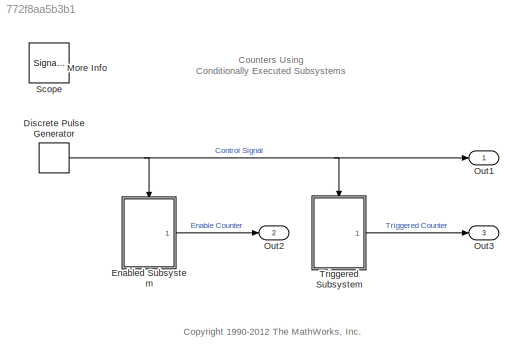
MODEL slx_772f8aa5b3b1
KIND model
BLOCK [DiscretePulseGenerator] Discrete Pulse Generator
  Period = 40
  Ports = [0, 1]
  PulseWidth = 20
  SampleTime = 0.01
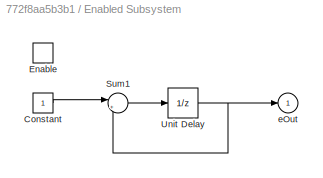
BLOCK [SubSystem] Enabled Subsystem
  FunctionWithSeparateData = off
  MaskHideContents = off
  MinAlgLoopOccurrences = off
  Opaque = off
  Ports = [0, 1, 1]
  PropExecContextOutsideSubsystem = off
  RTWSystemCode = Auto
  RequestExecContextInheritance = off
  TreatAsAtomicUnit = on
BLOCK [Constant] Enabled Subsystem/Constant
BLOCK [EnablePort] Enabled Subsystem/Enable
  Ports = []
  StatesWhenEnabling = reset
BLOCK [Sum] Enabled Subsystem/Sum1
  IconShape = round
  Inputs = |++
  Ports = [2, 1]
BLOCK [UnitDelay] Enabled Subsystem/Unit Delay
  SampleTime = .01
BLOCK [Outport] Enabled Subsystem/eOut
  IconDisplay = Port number
  InitialOutput = 0
BLOCK [SubSystem] More Info
  FunctionWithSeparateData = off
  MaskHideContents = off
  MinAlgLoopOccurrences = off
  Opaque = off
  OpenFcn = showdemo(bdroot(gcs))
  Ports = []
  PropExecContextOutsideSubsystem = off
  RTWSystemCode = Auto
  RequestExecContextInheritance = off
BLOCK [Outport] Out1
  IconDisplay = Port number
BLOCK [Outport] Out2
  IconDisplay = Port number
  Port = 2
BLOCK [Outport] Out3
  IconDisplay = Port number
  Port = 3
BLOCK [SignalViewerScope] Scope
  IOType = viewer
  MaxDataPoints = 7500
  NumInputPorts = 3
  Ports = []
  RefreshTime = 0.035000
  ShowDataMarkers = off
  ShowLegends = off
  TimeRange = 2.25
  YMax = 1.1~20~4.5
  YMin = -0.1~0~-0.5
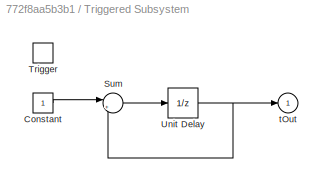
BLOCK [SubSystem] Triggered Subsystem
  FunctionWithSeparateData = off
  MaskHideContents = off
  MinAlgLoopOccurrences = off
  Opaque = off
  Ports = [0, 1, 0, 1]
  PropExecContextOutsideSubsystem = off
  RTWSystemCode = Auto
  RequestExecContextInheritance = off
  TreatAsAtomicUnit = on
BLOCK [Constant] Triggered Subsystem/Constant
BLOCK [Sum] Triggered Subsystem/Sum
  IconShape = round
  Inputs = |++
  Ports = [2, 1]
BLOCK [TriggerPort] Triggered Subsystem/Trigger
  Ports = []
BLOCK [UnitDelay] Triggered Subsystem/Unit Delay
  SampleTime = -1
BLOCK [Outport] Triggered Subsystem/tOut
  IconDisplay = Port number
  InitialOutput = 0
ANNOTATION (root): <copyright redacted>
ANNOTATION (root): Counters Using Conditionally Executed Subsystems
NET Discrete Pulse Generator:1 -> Enabled Subsystem:enable, Out1:1, Triggered Subsystem:trigger
LINE Enabled Subsystem/Constant:1 -> Enabled Subsystem/Sum1:1
LINE Enabled Subsystem/Sum1:1 -> Enabled Subsystem/Unit Delay:1
NET Enabled Subsystem/Unit Delay:1 -> Enabled Subsystem/Sum1:2, Enabled Subsystem/eOut:1
LINE Enabled Subsystem:1 -> Out2:1
LINE Triggered Subsystem/Constant:1 -> Triggered Subsystem/Sum:1
LINE Triggered Subsystem/Sum:1 -> Triggered Subsystem/Unit Delay:1
NET Triggered Subsystem/Unit Delay:1 -> Triggered Subsystem/Sum:2, Triggered Subsystem/tOut:1
LINE Triggered Subsystem:1 -> Out3:1
note: NET lines group one-source signal fan-out (src -> all destinations, sorted); 1:1 wires keep LINE
